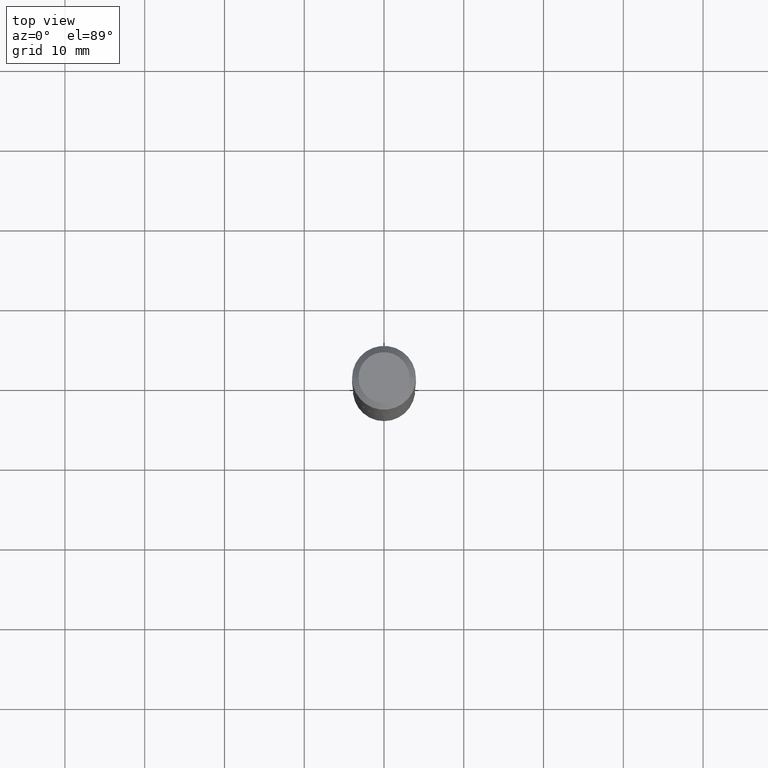
[diagram: clean part render]
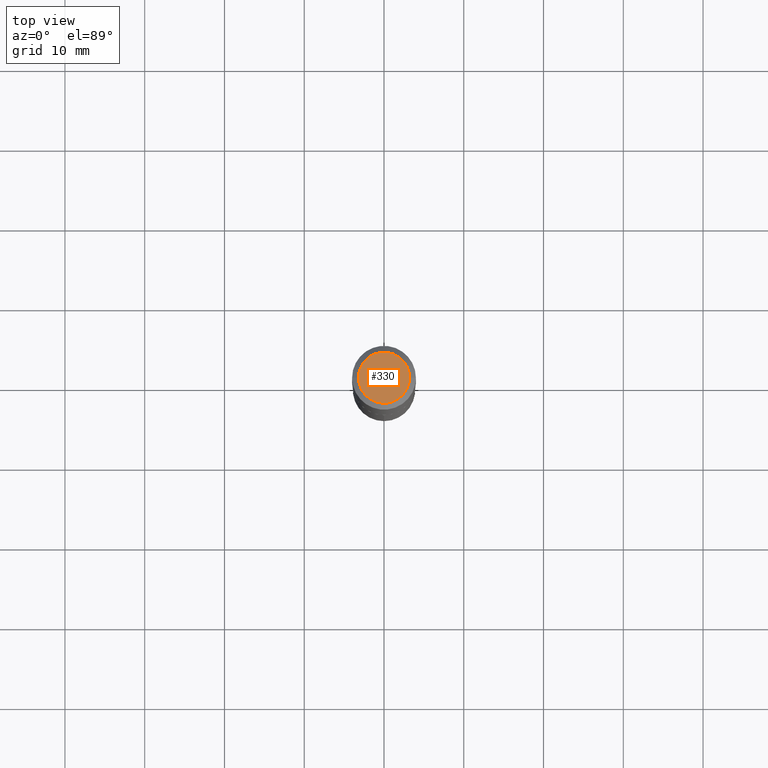
[diagram: same view with one face highlighted and labeled with its STEP entity id]
A machine part, top view. The second image highlights one B-rep face of the part: STEP entity #330.
In plain terms, the highlighted planar face has unit normal (0, -0, -1).
Its self-contained STEP definition (entity closure, byte-faithful):
#7 = EDGE_LOOP ( 'NONE', ( #424, #173 ) ) ;
#17 = DIRECTION ( 'NONE',  ( -2.445468806185136597E-29, 3.491481338843145583E-15, 1.000000000000000000 ) ) ;
#18 = VERTEX_POINT ( 'NONE', #261 ) ;
#21 = CARTESIAN_POINT ( 'NONE',  ( -4.719860820353100843E-47, 6.738710358733633822E-33, 1.930043355456229866E-18 ) ) ;
#61 = DIRECTION ( 'NONE',  ( -1.000000000000000000, 6.982962677686265922E-15, -4.876176775795935793E-29 ) ) ;
#86 = VERTEX_POINT ( 'NONE', #338 ) ;
#149 = AXIS2_PLACEMENT_3D ( 'NONE', #21, #250, #61 ) ;
#170 = CIRCLE ( 'NONE', #439, 0.1260000000000000009 ) ;
#173 = ORIENTED_EDGE ( 'NONE', *, *, #307, .T. ) ;
#193 = EDGE_CURVE ( 'NONE', #18, #86, #170, .T. ) ;
#214 = FACE_OUTER_BOUND ( 'NONE', #7, .T. ) ;
#216 = CARTESIAN_POINT ( 'NONE',  ( -9.439721640706201686E-47, 1.347742071746726764E-32, 3.860086710912459732E-18 ) ) ;
#250 = DIRECTION ( 'NONE',  ( 2.438088387897960049E-29, -3.491481338843145188E-15, -1.000000000000000000 ) ) ;
#261 = CARTESIAN_POINT ( 'NONE',  ( -0.1260000000000000009, 9.348441284752484904E-16, 3.860086710906114178E-18 ) ) ;
#285 = CIRCLE ( 'NONE', #404, 0.1260000000000000009 ) ;
#307 = EDGE_CURVE ( 'NONE', #86, #18, #285, .T. ) ;
#319 = DIRECTION ( 'NONE',  ( 1.000000000000000000, -6.982962677686265922E-15, 4.876281427513067258E-29 ) ) ;
#330 = ADVANCED_FACE ( 'NONE', ( #214 ), #356, .F. ) ;
#332 = DIRECTION ( 'NONE',  ( -2.445468806185136597E-29, 3.491481338843145583E-15, 1.000000000000000000 ) ) ;
#338 = CARTESIAN_POINT ( 'NONE',  ( 0.1260000000000000009, -1.027466422270894443E-15, 3.860086710919128072E-18 ) ) ;
#356 = PLANE ( 'NONE',  #149 ) ;
#404 = AXIS2_PLACEMENT_3D ( 'NONE', #216, #17, #319 ) ;
#424 = ORIENTED_EDGE ( 'NONE', *, *, #193, .T. ) ;
#439 = AXIS2_PLACEMENT_3D ( 'NONE', #456, #332, #458 ) ;
#456 = CARTESIAN_POINT ( 'NONE',  ( -9.439721640706201686E-47, 1.347742071746726764E-32, 3.860086710912459732E-18 ) ) ;
#458 = DIRECTION ( 'NONE',  ( 1.000000000000000000, -6.982962677686265922E-15, 4.876281427513067258E-29 ) ) ;